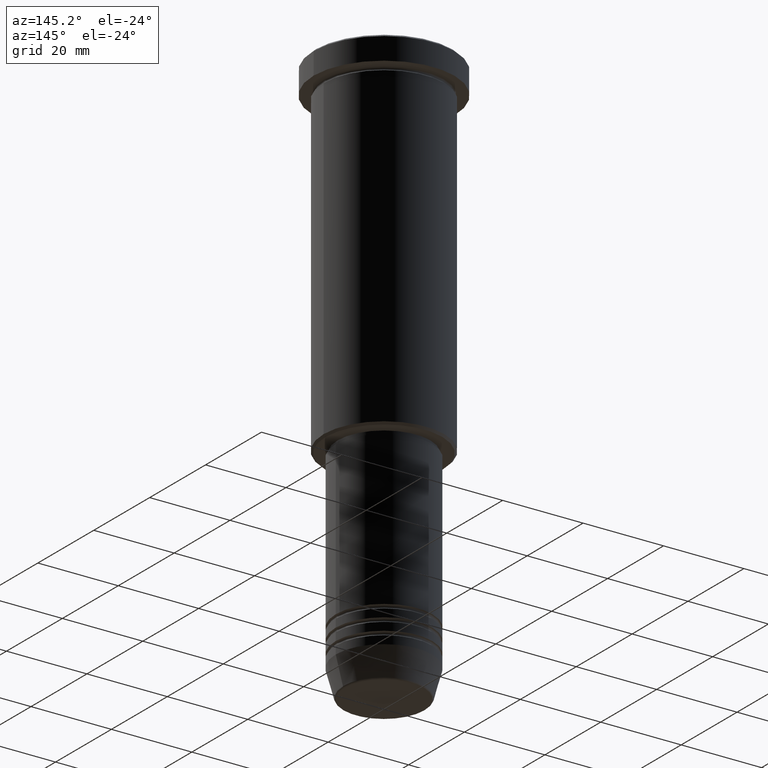
[diagram: clean part render]
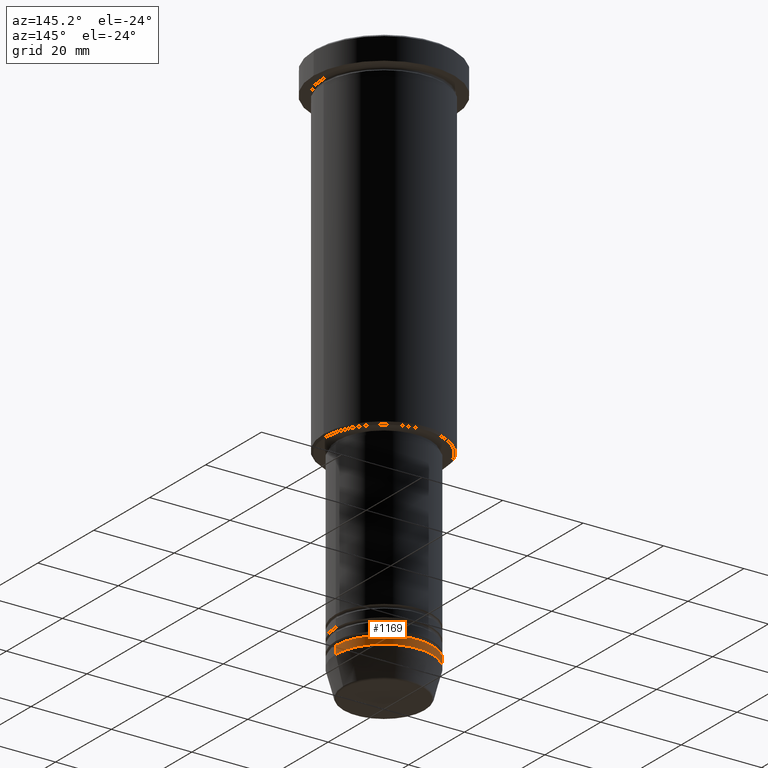
[diagram: same view with one face highlighted and labeled with its STEP entity id]
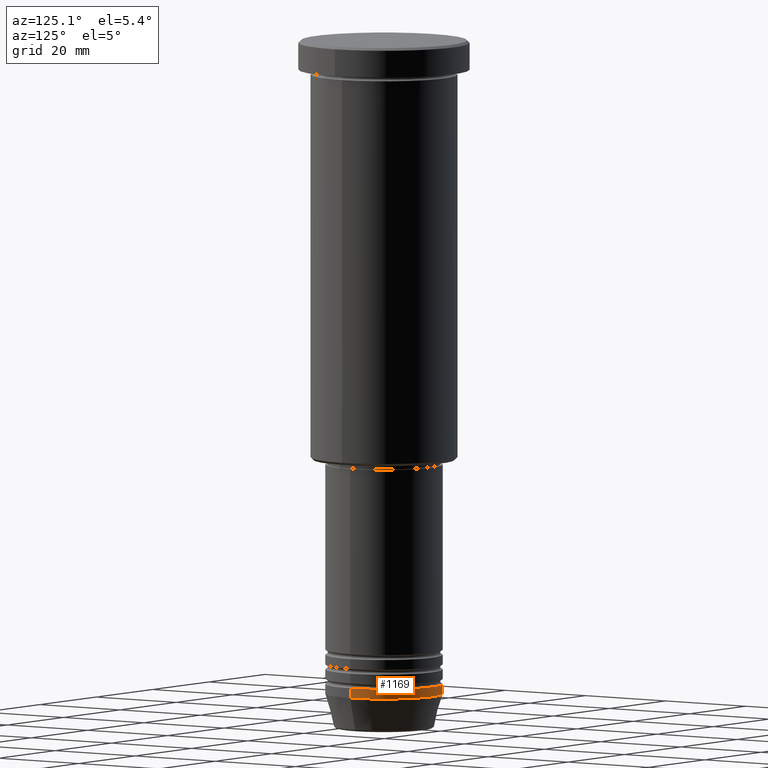
[diagram: same view with one face highlighted and labeled with its STEP entity id]
A machine part, auxiliary view. The second image highlights one B-rep face of the part: STEP entity #1169.
A second angle (auxiliary view) of the same face is appended — the face is thin or edge-on in the first view.
In plain terms, the highlighted cylindrical surface (partial cylindrical patch) has radius 12 mm, axis along (-0, -0, 1).
Its self-contained STEP definition (entity closure, byte-faithful):
#18 = CARTESIAN_POINT ( 'NONE',  ( 0.000000000000000000, 0.000000000000000000, 0.000000000000000000 ) ) ;
#121 = CARTESIAN_POINT ( 'NONE',  ( 12.00000000000000000, 0.000000000000000000, -134.0000000000000000 ) ) ;
#136 = CARTESIAN_POINT ( 'NONE',  ( 12.00000000000000000, 0.000000000000000000, 0.000000000000000000 ) ) ;
#141 = CARTESIAN_POINT ( 'NONE',  ( -12.00000000000000000, 1.469576158976823947E-15, -132.0000000000000000 ) ) ;
#206 = AXIS2_PLACEMENT_3D ( 'NONE', #18, #746, #477 ) ;
#213 = LINE ( 'NONE', #571, #1008 ) ;
#225 = VERTEX_POINT ( 'NONE', #670 ) ;
#239 = DIRECTION ( 'NONE',  ( -0.000000000000000000, -0.000000000000000000, 1.000000000000000000 ) ) ;
#242 = DIRECTION ( 'NONE',  ( -0.000000000000000000, -0.000000000000000000, 1.000000000000000000 ) ) ;
#263 = CIRCLE ( 'NONE', #948, 12.00000000000000000 ) ;
#271 = ORIENTED_EDGE ( 'NONE', *, *, #640, .T. ) ;
#289 = EDGE_LOOP ( 'NONE', ( #439, #271, #1074, #1090 ) ) ;
#330 = CARTESIAN_POINT ( 'NONE',  ( -12.00000000000000000, 1.469576158976823947E-15, -134.0000000000000000 ) ) ;
#439 = ORIENTED_EDGE ( 'NONE', *, *, #923, .T. ) ;
#477 = DIRECTION ( 'NONE',  ( 1.000000000000000000, 0.000000000000000000, 0.000000000000000000 ) ) ;
#570 = FACE_OUTER_BOUND ( 'NONE', #289, .T. ) ;
#571 = CARTESIAN_POINT ( 'NONE',  ( -12.00000000000000000, 1.469576158976823947E-15, 0.000000000000000000 ) ) ;
#590 = LINE ( 'NONE', #136, #929 ) ;
#640 = EDGE_CURVE ( 'NONE', #736, #937, #213, .T. ) ;
#670 = CARTESIAN_POINT ( 'NONE',  ( 12.00000000000000000, 0.000000000000000000, -132.0000000000000000 ) ) ;
#727 = DIRECTION ( 'NONE',  ( -0.000000000000000000, -0.000000000000000000, 1.000000000000000000 ) ) ;
#736 = VERTEX_POINT ( 'NONE', #330 ) ;
#746 = DIRECTION ( 'NONE',  ( -0.000000000000000000, -0.000000000000000000, 1.000000000000000000 ) ) ;
#780 = DIRECTION ( 'NONE',  ( -0.000000000000000000, -0.000000000000000000, 1.000000000000000000 ) ) ;
#878 = DIRECTION ( 'NONE',  ( 1.000000000000000000, 0.000000000000000000, 0.000000000000000000 ) ) ;
#902 = VERTEX_POINT ( 'NONE', #121 ) ;
#914 = CIRCLE ( 'NONE', #1047, 12.00000000000000000 ) ;
#923 = EDGE_CURVE ( 'NONE', #902, #736, #263, .T. ) ;
#929 = VECTOR ( 'NONE', #242, 1000.000000000000000 ) ;
#932 = EDGE_CURVE ( 'NONE', #902, #225, #590, .T. ) ;
#937 = VERTEX_POINT ( 'NONE', #141 ) ;
#948 = AXIS2_PLACEMENT_3D ( 'NONE', #1136, #780, #878 ) ;
#981 = CARTESIAN_POINT ( 'NONE',  ( 0.000000000000000000, 0.000000000000000000, -132.0000000000000000 ) ) ;
#1006 = CYLINDRICAL_SURFACE ( 'NONE', #206, 12.00000000000000000 ) ;
#1008 = VECTOR ( 'NONE', #239, 1000.000000000000000 ) ;
#1042 = EDGE_CURVE ( 'NONE', #225, #937, #914, .T. ) ;
#1047 = AXIS2_PLACEMENT_3D ( 'NONE', #981, #727, #1183 ) ;
#1074 = ORIENTED_EDGE ( 'NONE', *, *, #1042, .F. ) ;
#1090 = ORIENTED_EDGE ( 'NONE', *, *, #932, .F. ) ;
#1136 = CARTESIAN_POINT ( 'NONE',  ( 0.000000000000000000, 0.000000000000000000, -134.0000000000000000 ) ) ;
#1169 = ADVANCED_FACE ( 'NONE', ( #570 ), #1006, .T. ) ;
#1183 = DIRECTION ( 'NONE',  ( 1.000000000000000000, 0.000000000000000000, 0.000000000000000000 ) ) ;